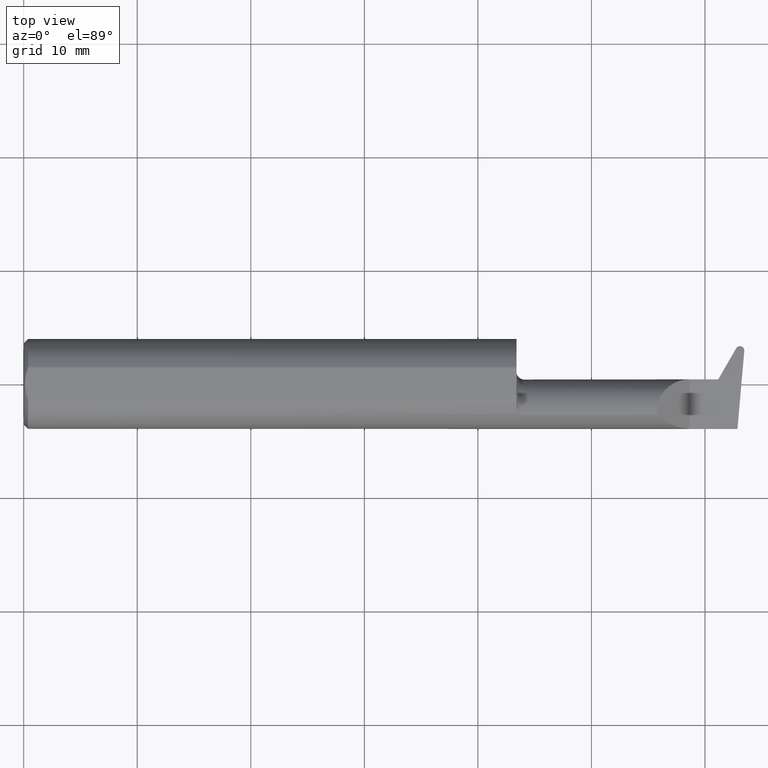
[diagram: clean part render]
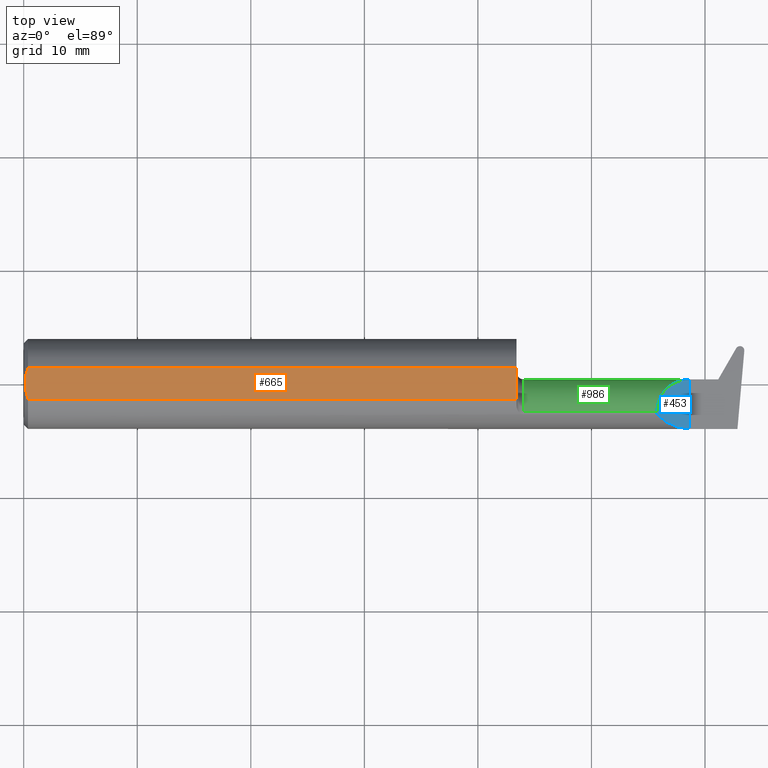
[diagram: same view with three faces highlighted in distinct colors, each labeled with its STEP entity id]
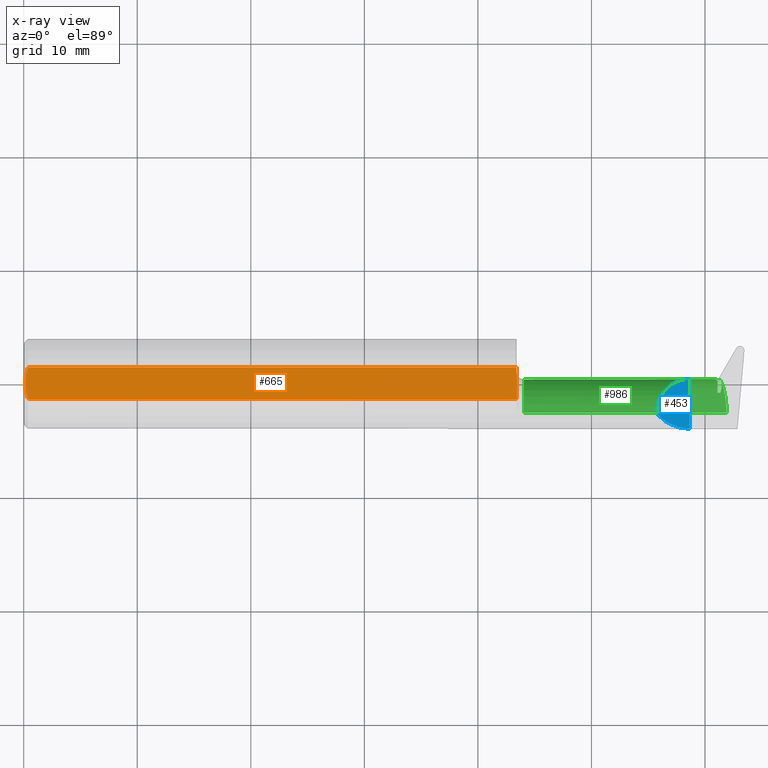
[diagram: x-ray of the same camera — body ghosted, the three highlighted faces saturated]
A machine part, top view with three faces highlighted in distinct colors.
The next image is the same camera in x-ray (body ghosted, the three faces saturated) — at least one of them is partly hidden behind the body in this view.
Their STEP definitions:

[orange] entity #665 — the highlighted planar face has unit normal (-0, 0, -1).
#32 = ORIENTED_EDGE ( 'NONE', *, *, #849, .F. ) ;
#52 = CARTESIAN_POINT ( 'NONE',  ( 0.01499999999999970281, 0.05497272050753906208, 0.1460999999999999521 ) ) ;
#69 = CARTESIAN_POINT ( 'NONE',  ( 0.000000000000000000, 0.1000000000000000056, 0.1460999999999999521 ) ) ;
#108 = CARTESIAN_POINT ( 'NONE',  ( 1.708566166913449313, 0.05497272050753906208, 0.1460999999999999521 ) ) ;
#113 = EDGE_CURVE ( 'NONE', #478, #175, #174, .T. ) ;
#129 = EDGE_CURVE ( 'NONE', #478, #230, #979, .T. ) ;
#136 = LINE ( 'NONE', #518, #431 ) ;
#174 = LINE ( 'NONE', #486, #423 ) ;
#175 = VERTEX_POINT ( 'NONE', #108 ) ;
#191 = VERTEX_POINT ( 'NONE', #767 ) ;
#228 = DIRECTION ( 'NONE',  ( -1.000000000000000000, 0.000000000000000000, 0.000000000000000000 ) ) ;
#230 = VERTEX_POINT ( 'NONE', #970 ) ;
#305 = FACE_OUTER_BOUND ( 'NONE', #634, .T. ) ;
#308 = CARTESIAN_POINT ( 'NONE',  ( 0.01499999999999971148, -0.05497272050753906208, 0.1460999999999999521 ) ) ;
#311 = ORIENTED_EDGE ( 'NONE', *, *, #113, .F. ) ;
#325 = CARTESIAN_POINT ( 'NONE',  ( 0.008721867529794214910, 0.03714539689046109094, 0.1460999999999999521 ) ) ;
#334 = ORIENTED_EDGE ( 'NONE', *, *, #129, .T. ) ;
#336 = DIRECTION ( 'NONE',  ( 1.000000000000000000, 0.000000000000000000, 0.000000000000000000 ) ) ;
#350 = VECTOR ( 'NONE', #1014, 39.37007874015748143 ) ;
#376 = EDGE_CURVE ( 'NONE', #230, #191, #402, .T. ) ;
#402 = B_SPLINE_CURVE_WITH_KNOTS ( 'NONE', 3,
 ( #703, #480, #858, #1015, #556, #308 ),
 .UNSPECIFIED., .F., .F.,
 ( 4, 2, 4 ),
 ( 0.004461768721905542794, 0.005169424789028948669, 0.005877080856152355412 ),
 .UNSPECIFIED. ) ;
#423 = VECTOR ( 'NONE', #336, 39.37007874015748143 ) ;
#431 = VECTOR ( 'NONE', #600, 39.37007874015748143 ) ;
#441 = AXIS2_PLACEMENT_3D ( 'NONE', #69, #934, #228 ) ;
#462 = VERTEX_POINT ( 'NONE', #848 ) ;
#478 = VERTEX_POINT ( 'NONE', #52 ) ;
#480 = CARTESIAN_POINT ( 'NONE',  ( 0.004999999999997538531, -0.009421212120332627532, 0.1460999999999999521 ) ) ;
#486 = CARTESIAN_POINT ( 'NONE',  ( 2.500000000000000000, 0.05497272050753906208, 0.1460999999999999521 ) ) ;
#496 = ORIENTED_EDGE ( 'NONE', *, *, #813, .F. ) ;
#518 = CARTESIAN_POINT ( 'NONE',  ( 2.500000000000000000, -0.05497272050753906208, 0.1460999999999999521 ) ) ;
#556 = CARTESIAN_POINT ( 'NONE',  ( 0.01189405015400045972, -0.04615309567390931539, 0.1460999999999999521 ) ) ;
#565 = CARTESIAN_POINT ( 'NONE',  ( 0.004999999999999610659, 1.568771489523154700E-17, 0.1460999999999999521 ) ) ;
#600 = DIRECTION ( 'NONE',  ( -1.000000000000000000, -0.000000000000000000, -0.000000000000000000 ) ) ;
#634 = EDGE_LOOP ( 'NONE', ( #496, #311, #334, #929, #32 ) ) ;
#644 = CARTESIAN_POINT ( 'NONE',  ( 0.004999999999997604451, 0.01885727988527094792, 0.1460999999999999521 ) ) ;
#665 = ADVANCED_FACE ( 'NONE', ( #305 ), #780, .F. ) ;
#703 = CARTESIAN_POINT ( 'NONE',  ( 0.004999999999999610659, 1.568771489523154700E-17, 0.1460999999999999521 ) ) ;
#767 = CARTESIAN_POINT ( 'NONE',  ( 0.01499999999999971148, -0.05497272050753906208, 0.1460999999999999521 ) ) ;
#780 = PLANE ( 'NONE',  #441 ) ;
#813 = EDGE_CURVE ( 'NONE', #175, #462, #846, .T. ) ;
#839 = CARTESIAN_POINT ( 'NONE',  ( 1.708566166913449313, 0.1000000000000000056, 0.1460999999999999521 ) ) ;
#846 = LINE ( 'NONE', #839, #350 ) ;
#848 = CARTESIAN_POINT ( 'NONE',  ( 1.708566166913449313, -0.05497272050753906208, 0.1460999999999999521 ) ) ;
#849 = EDGE_CURVE ( 'NONE', #462, #191, #136, .T. ) ;
#858 = CARTESIAN_POINT ( 'NONE',  ( 0.005939505582910693110, -0.01887490007994177196, 0.1460999999999999521 ) ) ;
#872 = CARTESIAN_POINT ( 'NONE',  ( 0.01499999999999970281, 0.05497272050753906208, 0.1460999999999999521 ) ) ;
#929 = ORIENTED_EDGE ( 'NONE', *, *, #376, .T. ) ;
#934 = DIRECTION ( 'NONE',  ( -0.000000000000000000, 0.000000000000000000, -1.000000000000000000 ) ) ;
#970 = CARTESIAN_POINT ( 'NONE',  ( 0.004999999999999610659, 1.568771489523154700E-17, 0.1460999999999999521 ) ) ;
#979 = B_SPLINE_CURVE_WITH_KNOTS ( 'NONE', 3,
 ( #872, #325, #644, #565 ),
 .UNSPECIFIED., .F., .F.,
 ( 4, 4 ),
 ( 0.003045340734740736681, 0.004461768721905542794 ),
 .UNSPECIFIED. ) ;
#1014 = DIRECTION ( 'NONE',  ( 0.000000000000000000, -1.000000000000000000, 0.000000000000000000 ) ) ;
#1015 = CARTESIAN_POINT ( 'NONE',  ( 0.009389923699172924090, -0.03718686308286637404, 0.1460999999999999244 ) ) ;

[blue] entity #453 — the highlighted planar face has unit normal (0.7071, 0, 0.7071).
#38 = EDGE_CURVE ( 'NONE', #723, #887, #254, .T. ) ;
#60 = CARTESIAN_POINT ( 'NONE',  ( 2.195100000000000495, -0.09809999999999997888, 0.1139000000000000012 ) ) ;
#93 = CARTESIAN_POINT ( 'NONE',  ( 2.195100000000000495, -0.1011117426131864228, 0.1139000000000000012 ) ) ;
#109 = EDGE_LOOP ( 'NONE', ( #179, #711, #692, #890 ) ) ;
#179 = ORIENTED_EDGE ( 'NONE', *, *, #1016, .F. ) ;
#193 = AXIS2_PLACEMENT_3D ( 'NONE', #293, #278, #669 ) ;
#203 = PLANE ( 'NONE',  #193 ) ;
#235 = DIRECTION ( 'NONE',  ( 0.000000000000000000, -1.000000000000000000, 0.000000000000000000 ) ) ;
#251 = CARTESIAN_POINT ( 'NONE',  ( 2.195100000000000495, -0.09809999999999997888, 0.1139000000000000012 ) ) ;
#254 = LINE ( 'NONE', #572, #511 ) ;
#261 =( BOUNDED_CURVE ( )  B_SPLINE_CURVE ( 3, ( #251, #327, #646, #567 ),
 .UNSPECIFIED., .F., .F. ) 
 B_SPLINE_CURVE_WITH_KNOTS ( ( 4, 4 ),
 ( 0.000000000000000000, 1.570796326794896780 ),
 .UNSPECIFIED. ) 
 CURVE ( )  GEOMETRIC_REPRESENTATION_ITEM ( )  RATIONAL_B_SPLINE_CURVE ( ( 1.000000000000000000, 0.8047378541243649375, 0.8047378541243649375, 1.000000000000000000 ) ) 
 REPRESENTATION_ITEM ( '' )  );
#278 = DIRECTION ( 'NONE',  ( 0.7071067811865509034, 0.000000000000000000, 0.7071067811865441310 ) ) ;
#291 = CARTESIAN_POINT ( 'NONE',  ( 2.195457988604305744, -0.1071233944954127631, 0.1135420113956950999 ) ) ;
#293 = CARTESIAN_POINT ( 'NONE',  ( 2.195000000000000284, 0.2500000000000000000, 0.1140000000000004482 ) ) ;
#298 = CARTESIAN_POINT ( 'NONE',  ( 2.308999999999999719, -0.1560999999999999888, -3.995833282175376183E-17 ) ) ;
#327 = CARTESIAN_POINT ( 'NONE',  ( 2.195100000000000495, -0.03137892475429548966, 0.1139000000000000012 ) ) ;
#407 = CARTESIAN_POINT ( 'NONE',  ( 2.195100000000000495, -0.09809999999999997888, 0.1139000000000000012 ) ) ;
#453 = ADVANCED_FACE ( 'NONE', ( #1005 ), #203, .T. ) ;
#455 = CARTESIAN_POINT ( 'NONE',  ( 2.308999999999999719, 0.01579999999999997379, -3.995833282175376183E-17 ) ) ;
#484 = CARTESIAN_POINT ( 'NONE',  ( 2.195219392101079414, -0.1041211178131711823, 0.1137806078989209990 ) ) ;
#511 = VECTOR ( 'NONE', #235, 39.37007874015748143 ) ;
#551 = CARTESIAN_POINT ( 'NONE',  ( 2.195457988604305744, -0.1071233944954127631, 0.1135420113956950999 ) ) ;
#567 = CARTESIAN_POINT ( 'NONE',  ( 2.308999999999999719, 0.01579999999999997379, -3.995833282175376183E-17 ) ) ;
#572 = CARTESIAN_POINT ( 'NONE',  ( 2.308999999999999719, -0.1560999999999999888, -3.995833282175376183E-17 ) ) ;
#583 = EDGE_CURVE ( 'NONE', #887, #856, #799, .T. ) ;
#616 =( BOUNDED_CURVE ( )  B_SPLINE_CURVE ( 3, ( #1020, #484, #93, #407 ),
 .UNSPECIFIED., .F., .T. ) 
 B_SPLINE_CURVE_WITH_KNOTS ( ( 4, 4 ),
 ( 6.203880127811983058, 6.283185307179586232 ),
 .UNSPECIFIED. ) 
 CURVE ( )  GEOMETRIC_REPRESENTATION_ITEM ( )  RATIONAL_B_SPLINE_CURVE ( ( 1.000000000000000000, 0.9994759593794937391, 0.9994759593794937391, 1.000000000000000000 ) ) 
 REPRESENTATION_ITEM ( '' )  );
#620 = CARTESIAN_POINT ( 'NONE',  ( 2.265404887073371398, -0.1560999999999999888, 0.04359511292662814758 ) ) ;
#646 = CARTESIAN_POINT ( 'NONE',  ( 2.242278924754295577, 0.01580000000000005012, 0.06672107524570446146 ) ) ;
#669 = DIRECTION ( 'NONE',  ( 0.7071067811865441310, 0.000000000000000000, -0.7071067811865509034 ) ) ;
#692 = ORIENTED_EDGE ( 'NONE', *, *, #38, .F. ) ;
#711 = ORIENTED_EDGE ( 'NONE', *, *, #583, .F. ) ;
#723 = VERTEX_POINT ( 'NONE', #455 ) ;
#799 =( BOUNDED_CURVE ( )  B_SPLINE_CURVE ( 3, ( #1011, #620, #855, #551 ),
 .UNSPECIFIED., .F., .F. ) 
 B_SPLINE_CURVE_WITH_KNOTS ( ( 4, 4 ),
 ( 4.712388980384689674, 5.526866498378995018 ),
 .UNSPECIFIED. ) 
 CURVE ( )  GEOMETRIC_REPRESENTATION_ITEM ( )  RATIONAL_B_SPLINE_CURVE ( ( 1.000000000000000000, 0.9454786543792904618, 0.9454786543792904618, 1.000000000000000000 ) ) 
 REPRESENTATION_ITEM ( '' )  );
#855 = CARTESIAN_POINT ( 'NONE',  ( 2.225375070475613892, -0.1388330473378973640, 0.08362492952438650706 ) ) ;
#856 = VERTEX_POINT ( 'NONE', #291 ) ;
#868 = VERTEX_POINT ( 'NONE', #60 ) ;
#887 = VERTEX_POINT ( 'NONE', #298 ) ;
#890 = ORIENTED_EDGE ( 'NONE', *, *, #1018, .F. ) ;
#1005 = FACE_OUTER_BOUND ( 'NONE', #109, .T. ) ;
#1011 = CARTESIAN_POINT ( 'NONE',  ( 2.308999999999999719, -0.1560999999999999888, -3.995833282175376183E-17 ) ) ;
#1016 = EDGE_CURVE ( 'NONE', #856, #868, #616, .T. ) ;
#1018 = EDGE_CURVE ( 'NONE', #868, #723, #261, .T. ) ;
#1020 = CARTESIAN_POINT ( 'NONE',  ( 2.195457988604305744, -0.1071233944954127631, 0.1135420113956950999 ) ) ;

[green] entity #986 — the highlighted cylindrical surface (edge-blend (fillet) strip) has radius 2.8931 mm, axis along (-1, -0, -0).
#5 = CARTESIAN_POINT ( 'NONE',  ( 2.405843228791619381, -0.02897047008149045144, -0.09052247286307359142 ) ) ;
#8 = VECTOR ( 'NONE', #660, 39.37007874015748143 ) ;
#11 = VERTEX_POINT ( 'NONE', #769 ) ;
#13 = CARTESIAN_POINT ( 'NONE',  ( 2.415843228791619168, -0.02897047008149054512, -0.09052247286307373020 ) ) ;
#25 = CARTESIAN_POINT ( 'NONE',  ( 2.399990078184217612, 0.01580000000000001542, -0.01017670375807497828 ) ) ;
#29 = CARTESIAN_POINT ( 'NONE',  ( 2.427565682724233120, -0.004813959123876014080, -0.08330485728916137145 ) ) ;
#43 = VECTOR ( 'NONE', #844, 39.37007874015748143 ) ;
#44 = ORIENTED_EDGE ( 'NONE', *, *, #187, .T. ) ;
#47 = CARTESIAN_POINT ( 'NONE',  ( 1.733566166913449225, -0.09809999999999995113, -0.1139000000000000151 ) ) ;
#53 = VERTEX_POINT ( 'NONE', #340 ) ;
#60 = CARTESIAN_POINT ( 'NONE',  ( 2.195100000000000495, -0.09809999999999997888, 0.1139000000000000012 ) ) ;
#62 = CARTESIAN_POINT ( 'NONE',  ( 2.420878836853818328, -0.01009980214806243705, -0.07611146129626171486 ) ) ;
#66 = LINE ( 'NONE', #124, #479 ) ;
#84 = VERTEX_POINT ( 'NONE', #721 ) ;
#98 = VECTOR ( 'NONE', #158, 39.37007874015748143 ) ;
#111 = CARTESIAN_POINT ( 'NONE',  ( 2.435862470033701044, -0.04643981542513218180, -0.1139000000000000290 ) ) ;
#115 = EDGE_CURVE ( 'NONE', #11, #84, #758, .T. ) ;
#118 = CARTESIAN_POINT ( 'NONE',  ( 2.406840631339806080, 0.01176244615080196225, -0.03005749557642034900 ) ) ;
#121 = CARTESIAN_POINT ( 'NONE',  ( 2.414890382895462206, 0.01178324105679002393, -0.02998149691563834277 ) ) ;
#124 = CARTESIAN_POINT ( 'NONE',  ( 1.708566166913449313, 0.01580000000000002236, -3.995833282175376183E-17 ) ) ;
#134 = ORIENTED_EDGE ( 'NONE', *, *, #562, .F. ) ;
#145 = AXIS2_PLACEMENT_3D ( 'NONE', #231, #937, #869 ) ;
#154 = ORIENTED_EDGE ( 'NONE', *, *, #643, .T. ) ;
#158 = DIRECTION ( 'NONE',  ( 1.000000000000000000, 0.000000000000000000, 0.000000000000000000 ) ) ;
#164 = CARTESIAN_POINT ( 'NONE',  ( 1.708566166913449313, -0.09809999999999997888, 0.1139000000000000012 ) ) ;
#177 = VECTOR ( 'NONE', #475, 39.37007874015748143 ) ;
#187 = EDGE_CURVE ( 'NONE', #224, #445, #739, .T. ) ;
#198 = LINE ( 'NONE', #121, #43 ) ;
#222 = EDGE_CURVE ( 'NONE', #224, #307, #585, .T. ) ;
#224 = VERTEX_POINT ( 'NONE', #772 ) ;
#231 = CARTESIAN_POINT ( 'NONE',  ( 1.708566166913449313, -0.09809999999999997888, 0.000000000000000000 ) ) ;
#234 = CARTESIAN_POINT ( 'NONE',  ( 1.708566166913449313, -0.02897047008149045144, -0.09052247286307359142 ) ) ;
#240 = CARTESIAN_POINT ( 'NONE',  ( 2.415208801950325501, 0.01141582629045558538, -0.03132798159094266760 ) ) ;
#251 = CARTESIAN_POINT ( 'NONE',  ( 2.195100000000000495, -0.09809999999999997888, 0.1139000000000000012 ) ) ;
#253 = EDGE_CURVE ( 'NONE', #517, #307, #964, .T. ) ;
#261 =( BOUNDED_CURVE ( )  B_SPLINE_CURVE ( 3, ( #251, #327, #646, #567 ),
 .UNSPECIFIED., .F., .F. ) 
 B_SPLINE_CURVE_WITH_KNOTS ( ( 4, 4 ),
 ( 0.000000000000000000, 1.570796326794896780 ),
 .UNSPECIFIED. ) 
 CURVE ( )  GEOMETRIC_REPRESENTATION_ITEM ( )  RATIONAL_B_SPLINE_CURVE ( ( 1.000000000000000000, 0.8047378541243649375, 0.8047378541243649375, 1.000000000000000000 ) ) 
 REPRESENTATION_ITEM ( '' )  );
#273 = ORIENTED_EDGE ( 'NONE', *, *, #606, .T. ) ;
#303 = CARTESIAN_POINT ( 'NONE',  ( 2.415843228791619168, 0.01060699149548756035, -0.03400000000000000244 ) ) ;
#307 = VERTEX_POINT ( 'NONE', #303 ) ;
#317 = VECTOR ( 'NONE', #424, 39.37007874015748143 ) ;
#318 = CARTESIAN_POINT ( 'NONE',  ( 2.405843228791619381, -0.09809999999999997888, 0.000000000000000000 ) ) ;
#326 = ORIENTED_EDGE ( 'NONE', *, *, #696, .T. ) ;
#327 = CARTESIAN_POINT ( 'NONE',  ( 2.195100000000000495, -0.03137892475429548966, 0.1139000000000000012 ) ) ;
#333 = AXIS2_PLACEMENT_3D ( 'NONE', #836, #691, #528 ) ;
#340 = CARTESIAN_POINT ( 'NONE',  ( 2.407933152324056802, 0.01176526976053847602, -0.03004717125527968380 ) ) ;
#363 = VERTEX_POINT ( 'NONE', #854 ) ;
#380 = CARTESIAN_POINT ( 'NONE',  ( 2.414890331022167214, 0.01178327100585130349, -0.02998127337280162563 ) ) ;
#381 = VERTEX_POINT ( 'NONE', #933 ) ;
#399 = ORIENTED_EDGE ( 'NONE', *, *, #427, .F. ) ;
#420 = CARTESIAN_POINT ( 'NONE',  ( 2.404652148838981596, 0.01175679456555571781, -0.03007814302415115840 ) ) ;
#424 = DIRECTION ( 'NONE',  ( -1.000000000000000000, -0.000000000000000000, -0.000000000000000000 ) ) ;
#427 = EDGE_CURVE ( 'NONE', #53, #11, #538, .T. ) ;
#429 = CARTESIAN_POINT ( 'NONE',  ( 2.415843228791619168, 0.01060699149548756035, -0.03400000000000000244 ) ) ;
#434 = EDGE_CURVE ( 'NONE', #381, #445, #649, .T. ) ;
#445 = VERTEX_POINT ( 'NONE', #47 ) ;
#455 = CARTESIAN_POINT ( 'NONE',  ( 2.308999999999999719, 0.01579999999999997379, -3.995833282175376183E-17 ) ) ;
#470 = CARTESIAN_POINT ( 'NONE',  ( 2.420878836853818328, 0.003519218819336070950, -0.05666148364789252989 ) ) ;
#475 = DIRECTION ( 'NONE',  ( -1.000000000000000000, -0.000000000000000000, -0.000000000000000000 ) ) ;
#479 = VECTOR ( 'NONE', #771, 39.37007874015748143 ) ;
#499 =( BOUNDED_CURVE ( )  B_SPLINE_CURVE ( 3, ( #13, #62, #470, #535 ),
 .UNSPECIFIED., .F., .F. ) 
 B_SPLINE_CURVE_WITH_KNOTS ( ( 4, 4 ),
 ( 2.833855849274379057, 3.449329457905206286 ),
 .UNSPECIFIED. ) 
 CURVE ( )  GEOMETRIC_REPRESENTATION_ITEM ( )  RATIONAL_B_SPLINE_CURVE ( ( 1.000000000000000000, 0.9686810251563953145, 0.9686810251563953145, 1.000000000000000000 ) ) 
 REPRESENTATION_ITEM ( '' )  );
#500 = CARTESIAN_POINT ( 'NONE',  ( 2.415843228791619168, 0.01060699149548756035, -0.03400000000000000244 ) ) ;
#506 = CARTESIAN_POINT ( 'NONE',  ( 2.405746963504193481, 0.01175962108578899358, -0.03006781949944584836 ) ) ;
#510 = CARTESIAN_POINT ( 'NONE',  ( 2.407933152324056802, 0.01176526976053847602, -0.03004717125527968380 ) ) ;
#517 = VERTEX_POINT ( 'NONE', #923 ) ;
#519 = CIRCLE ( 'NONE', #713, 0.1139000000000000012 ) ;
#528 = DIRECTION ( 'NONE',  ( 0.000000000000000000, 0.000000000000000000, 1.000000000000000000 ) ) ;
#535 = CARTESIAN_POINT ( 'NONE',  ( 2.415843228791619168, 0.01060699149548756035, -0.03400000000000000244 ) ) ;
#537 = EDGE_CURVE ( 'NONE', #53, #363, #198, .T. ) ;
#538 =( BOUNDED_CURVE ( )  B_SPLINE_CURVE ( 3, ( #510, #118, #506, #672 ),
 .UNSPECIFIED., .F., .T. ) 
 B_SPLINE_CURVE_WITH_KNOTS ( ( 4, 4 ),
 ( 3.275074073241627914, 3.275355990933974670 ),
 .UNSPECIFIED. ) 
 CURVE ( )  GEOMETRIC_REPRESENTATION_ITEM ( )  RATIONAL_B_SPLINE_CURVE ( ( 1.000000000000000000, 0.9999999933768678462, 0.9999999933768678462, 1.000000000000000000 ) ) 
 REPRESENTATION_ITEM ( '' )  );
#539 = ORIENTED_EDGE ( 'NONE', *, *, #1018, .T. ) ;
#559 = ORIENTED_EDGE ( 'NONE', *, *, #866, .T. ) ;
#562 = EDGE_CURVE ( 'NONE', #868, #381, #699, .T. ) ;
#566 = EDGE_LOOP ( 'NONE', ( #851, #44, #765, #134, #539, #559, #639, #399, #581, #590, #645, #326, #273, #154 ) ) ;
#567 = CARTESIAN_POINT ( 'NONE',  ( 2.308999999999999719, 0.01579999999999997379, -3.995833282175376183E-17 ) ) ;
#574 = EDGE_CURVE ( 'NONE', #307, #363, #687, .T. ) ;
#581 = ORIENTED_EDGE ( 'NONE', *, *, #537, .T. ) ;
#585 =( BOUNDED_CURVE ( )  B_SPLINE_CURVE ( 3, ( #589, #111, #29, #429 ),
 .UNSPECIFIED., .F., .F. ) 
 B_SPLINE_CURVE_WITH_KNOTS ( ( 4, 4 ),
 ( 3.280742988484872225, 4.548410881397164651 ),
 .UNSPECIFIED. ) 
 CURVE ( )  GEOMETRIC_REPRESENTATION_ITEM ( )  RATIONAL_B_SPLINE_CURVE ( ( 1.000000000000000000, 0.8705085504928261608, 0.8705085504928261608, 1.000000000000000000 ) ) 
 REPRESENTATION_ITEM ( '' )  );
#589 = CARTESIAN_POINT ( 'NONE',  ( 2.437510501675156593, -0.09809999999999997888, -0.1138999999999999735 ) ) ;
#590 = ORIENTED_EDGE ( 'NONE', *, *, #574, .F. ) ;
#606 = EDGE_CURVE ( 'NONE', #956, #774, #704, .T. ) ;
#639 = ORIENTED_EDGE ( 'NONE', *, *, #115, .F. ) ;
#642 = CARTESIAN_POINT ( 'NONE',  ( 2.415843228791619168, 0.01060699149548756035, -0.03400000000000000244 ) ) ;
#643 = EDGE_CURVE ( 'NONE', #774, #307, #499, .T. ) ;
#645 = ORIENTED_EDGE ( 'NONE', *, *, #253, .F. ) ;
#646 = CARTESIAN_POINT ( 'NONE',  ( 2.242278924754295577, 0.01580000000000005012, 0.06672107524570446146 ) ) ;
#649 = CIRCLE ( 'NONE', #333, 0.1139000000000000290 ) ;
#660 = DIRECTION ( 'NONE',  ( 1.000000000000000000, -0.000000000000000000, 0.000000000000000000 ) ) ;
#672 = CARTESIAN_POINT ( 'NONE',  ( 2.404652148838981596, 0.01175679456555571781, -0.03007814302415115840 ) ) ;
#687 =( BOUNDED_CURVE ( )  B_SPLINE_CURVE ( 3, ( #642, #773, #240, #380 ),
 .UNSPECIFIED., .F., .F. ) 
 B_SPLINE_CURVE_WITH_KNOTS ( ( 4, 4 ),
 ( 4.548410881397164651, 4.585176233137338464 ),
 .UNSPECIFIED. ) 
 CURVE ( )  GEOMETRIC_REPRESENTATION_ITEM ( )  RATIONAL_B_SPLINE_CURVE ( ( 1.000000000000000000, 0.9998873622479103052, 0.9998873622479103052, 1.000000000000000000 ) ) 
 REPRESENTATION_ITEM ( '' )  );
#691 = DIRECTION ( 'NONE',  ( -1.000000000000000000, -0.000000000000000000, -0.000000000000000000 ) ) ;
#696 = EDGE_CURVE ( 'NONE', #517, #956, #519, .T. ) ;
#699 = LINE ( 'NONE', #164, #177 ) ;
#704 = LINE ( 'NONE', #234, #98 ) ;
#713 = AXIS2_PLACEMENT_3D ( 'NONE', #318, #946, #921 ) ;
#721 = CARTESIAN_POINT ( 'NONE',  ( 2.397672060843371700, 0.01580000000000002236, -3.995833282175376183E-17 ) ) ;
#723 = VERTEX_POINT ( 'NONE', #455 ) ;
#724 = CYLINDRICAL_SURFACE ( 'NONE', #145, 0.1139000000000000012 ) ;
#735 = CARTESIAN_POINT ( 'NONE',  ( 2.402330683926185095, 0.01444420765730103362, -0.02026269039811644593 ) ) ;
#739 = LINE ( 'NONE', #920, #317 ) ;
#758 =( BOUNDED_CURVE ( )  B_SPLINE_CURVE ( 3, ( #420, #735, #25, #801 ),
 .UNSPECIFIED., .F., .T. ) 
 B_SPLINE_CURVE_WITH_KNOTS ( ( 4, 4 ),
 ( 4.584294558283714238, 4.851539315279771003 ),
 .UNSPECIFIED. ) 
 CURVE ( )  GEOMETRIC_REPRESENTATION_ITEM ( )  RATIONAL_B_SPLINE_CURVE ( ( 1.000000000000000000, 0.9940572035772410331, 0.9940572035772410331, 1.000000000000000000 ) ) 
 REPRESENTATION_ITEM ( '' )  );
#765 = ORIENTED_EDGE ( 'NONE', *, *, #434, .F. ) ;
#769 = CARTESIAN_POINT ( 'NONE',  ( 2.404652148838981596, 0.01175679456555571781, -0.03007814302415115840 ) ) ;
#771 = DIRECTION ( 'NONE',  ( 1.000000000000000000, 0.000000000000000000, 0.000000000000000000 ) ) ;
#772 = CARTESIAN_POINT ( 'NONE',  ( 2.437510501675156593, -0.09809999999999997888, -0.1138999999999999735 ) ) ;
#773 = CARTESIAN_POINT ( 'NONE',  ( 2.415526470321594399, 0.01102368895086593137, -0.03266770803711742388 ) ) ;
#774 = VERTEX_POINT ( 'NONE', #918 ) ;
#795 = FACE_OUTER_BOUND ( 'NONE', #566, .T. ) ;
#801 = CARTESIAN_POINT ( 'NONE',  ( 2.397672060843371700, 0.01580000000000002236, -3.995833282175376183E-17 ) ) ;
#836 = CARTESIAN_POINT ( 'NONE',  ( 1.733566166913449225, -0.09809999999999997888, 0.000000000000000000 ) ) ;
#844 = DIRECTION ( 'NONE',  ( 0.9999521130107010825, 0.002582986933642067526, 0.009439272426135993099 ) ) ;
#851 = ORIENTED_EDGE ( 'NONE', *, *, #222, .F. ) ;
#854 = CARTESIAN_POINT ( 'NONE',  ( 2.414890331022167214, 0.01178327100585130349, -0.02998127337280162563 ) ) ;
#866 = EDGE_CURVE ( 'NONE', #723, #84, #66, .T. ) ;
#868 = VERTEX_POINT ( 'NONE', #60 ) ;
#869 = DIRECTION ( 'NONE',  ( 0.000000000000000000, 0.000000000000000000, 1.000000000000000000 ) ) ;
#918 = CARTESIAN_POINT ( 'NONE',  ( 2.415843228791619168, -0.02897047008149054512, -0.09052247286307373020 ) ) ;
#920 = CARTESIAN_POINT ( 'NONE',  ( 1.708566166913449313, -0.09809999999999995113, -0.1139000000000000012 ) ) ;
#921 = DIRECTION ( 'NONE',  ( 0.000000000000000000, -4.497115880702803228E-15, -1.000000000000000000 ) ) ;
#923 = CARTESIAN_POINT ( 'NONE',  ( 2.405843228791619381, 0.01060699149548756035, -0.03400000000000000244 ) ) ;
#933 = CARTESIAN_POINT ( 'NONE',  ( 1.733566166913449225, -0.09809999999999997888, 0.1139000000000000151 ) ) ;
#937 = DIRECTION ( 'NONE',  ( -1.000000000000000000, -0.000000000000000000, -0.000000000000000000 ) ) ;
#946 = DIRECTION ( 'NONE',  ( -1.000000000000000000, -0.000000000000000000, -0.000000000000000000 ) ) ;
#956 = VERTEX_POINT ( 'NONE', #5 ) ;
#964 = LINE ( 'NONE', #500, #8 ) ;
#986 = ADVANCED_FACE ( 'NONE', ( #795 ), #724, .T. ) ;
#1018 = EDGE_CURVE ( 'NONE', #868, #723, #261, .T. ) ;